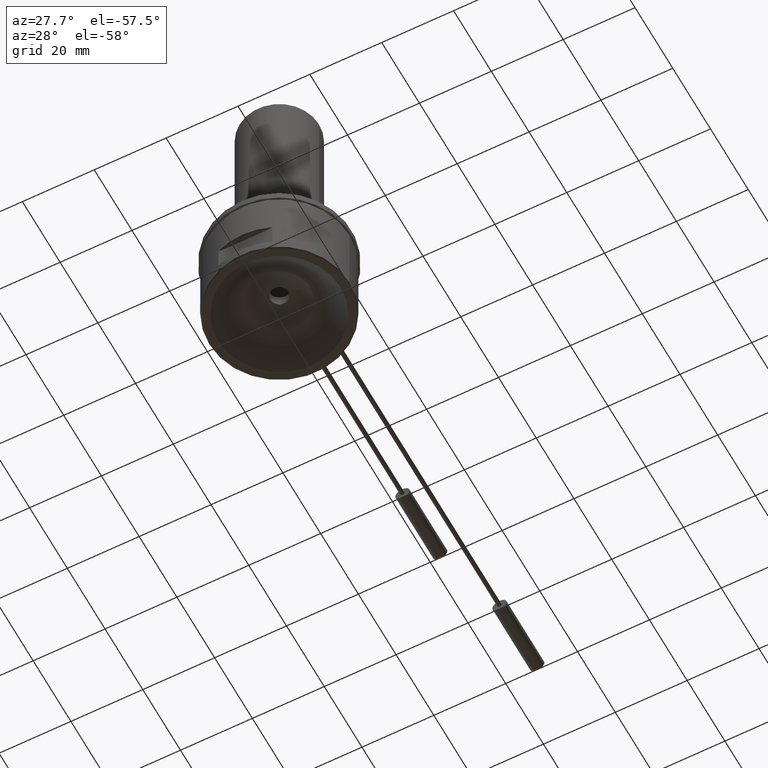
[diagram: clean part render]
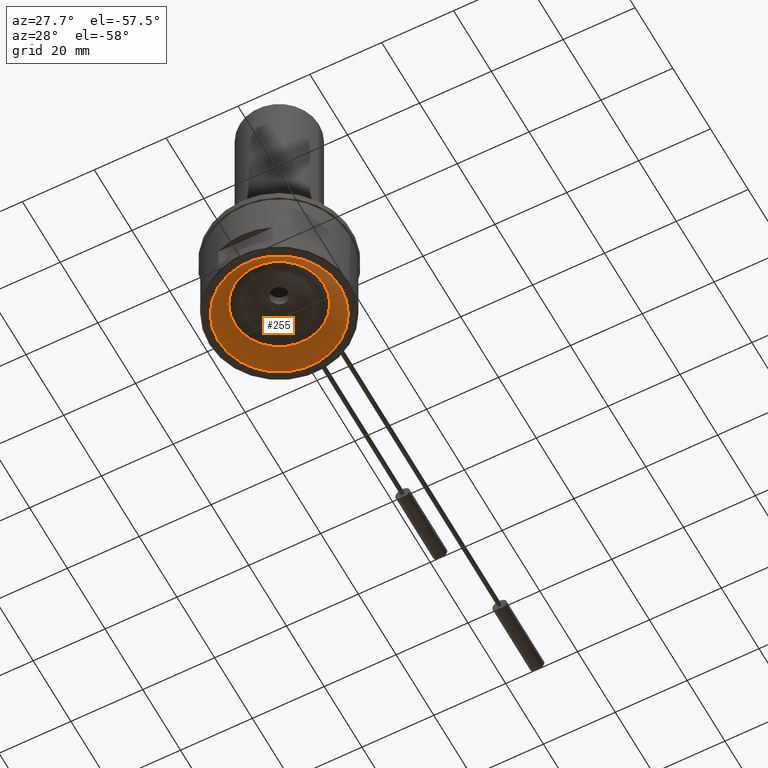
[diagram: same view with one face highlighted and labeled with its STEP entity id]
A machine part, auxiliary view. The second image highlights one B-rep face of the part: STEP entity #255.
In plain terms, the highlighted conical surface has half-angle 45 deg.
Its self-contained STEP definition (entity closure, byte-faithful):
#255=ADVANCED_FACE('',(#379,#380),#305,.F.);
#305=CONICAL_SURFACE('',#1198,11.,44.9999999999999);
#379=FACE_BOUND('',#461,.T.);
#380=FACE_BOUND('',#462,.T.);
#461=EDGE_LOOP('',(#640));
#462=EDGE_LOOP('',(#641));
#640=ORIENTED_EDGE('',*,*,#998,.T.);
#641=ORIENTED_EDGE('',*,*,#999,.F.);
#874=VERTEX_POINT('',#2071);
#875=VERTEX_POINT('',#2074);
#998=EDGE_CURVE('',#874,#874,#1098,.T.);
#999=EDGE_CURVE('',#875,#875,#1099,.T.);
#1098=CIRCLE('',#1195,12.4644660940673);
#1099=CIRCLE('',#1197,17.);
#1195=AXIS2_PLACEMENT_3D('',#2070,#1437,#1438);
#1197=AXIS2_PLACEMENT_3D('',#2073,#1441,#1442);
#1198=AXIS2_PLACEMENT_3D('',#2075,#1443,#1444);
#1437=DIRECTION('',(0.,0.,1.));
#1438=DIRECTION('',(-1.,0.,0.));
#1441=DIRECTION('',(0.,0.,1.));
#1442=DIRECTION('',(1.,0.,0.));
#1443=DIRECTION('',(0.,0.,-1.));
#1444=DIRECTION('',(-1.,0.,2.65956616000402E-17));
#2070=CARTESIAN_POINT('',(0.,0.,4.5355339059327));
#2071=CARTESIAN_POINT('',(-12.4644660940673,0.,4.5355339059327));
#2073=CARTESIAN_POINT('',(0.,0.,-1.73472347597681E-15));
#2074=CARTESIAN_POINT('',(17.,0.,-1.73472347597681E-15));
#2075=CARTESIAN_POINT('',(0.,0.,5.99999999999998));